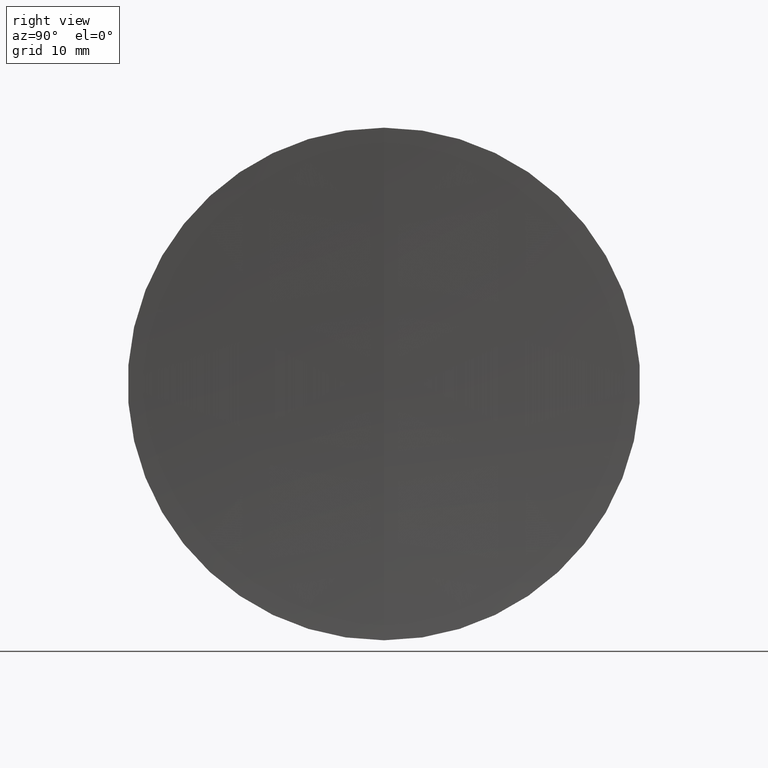
[diagram: clean part render]
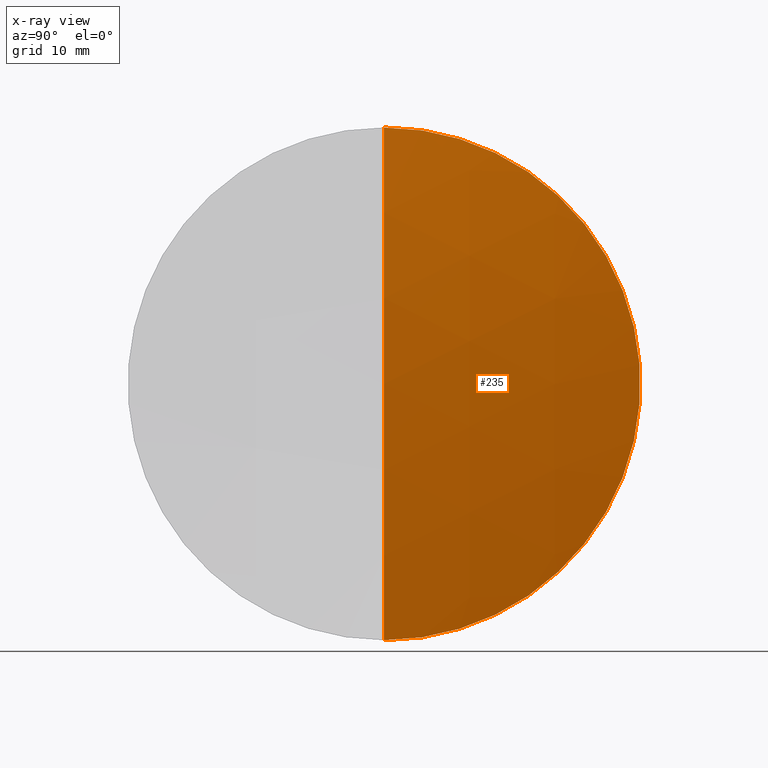
[diagram: x-ray — body ghosted, one internal face saturated and labeled with its STEP entity id]
A machine part, right view, then the same camera in x-ray: the body is ghosted and one INTERNAL B-rep face — a face not visible from any outside direction — is saturated and labeled: STEP entity #235.
In plain terms, the highlighted spherical surface has radius 161.5 mm.
Its self-contained STEP definition (entity closure, byte-faithful):
#1 = VERTEX_POINT ( 'NONE', #91 ) ;
#3 = EDGE_CURVE ( 'NONE', #1, #245, #28, .T. ) ;
#8 = CARTESIAN_POINT ( 'NONE',  ( 44.36476896124682400, 0.0000000000000000000, 3.080629158308288600E-014 ) ) ;
#14 = DIRECTION ( 'NONE',  ( 0.0000000000000000000, -1.000000000000000000, 0.0000000000000000000 ) ) ;
#28 = CIRCLE ( 'NONE', #168, 161.5000000000000000 ) ;
#31 = EDGE_CURVE ( 'NONE', #1, #320, #167, .T. ) ;
#40 = CARTESIAN_POINT ( 'NONE',  ( 203.8548626975037100, 0.0000000000000000000, 0.0000000000000000000 ) ) ;
#44 = CARTESIAN_POINT ( 'NONE',  ( 203.8548626975037100, 3.110602869834281200E-015, -25.40000000000003400 ) ) ;
#75 = ORIENTED_EDGE ( 'NONE', *, *, #3, .F. ) ;
#77 = SPHERICAL_SURFACE ( 'NONE', #155, 161.5000000000000000 ) ;
#89 = DIRECTION ( 'NONE',  ( -1.000000000000000000, -0.0000000000000000000, -0.0000000000000000000 ) ) ;
#91 = CARTESIAN_POINT ( 'NONE',  ( 205.8647689612468200, 0.0000000000000000000, 4.069531448619776800E-014 ) ) ;
#102 = FACE_OUTER_BOUND ( 'NONE', #201, .T. ) ;
#113 = DIRECTION ( 'NONE',  ( 0.0000000000000000000, 1.000000000000000000, 0.0000000000000000000 ) ) ;
#123 = AXIS2_PLACEMENT_3D ( 'NONE', #40, #89, #258 ) ;
#127 = CARTESIAN_POINT ( 'NONE',  ( 203.8548626975037100, 0.0000000000000000000, 25.40000000000003100 ) ) ;
#128 = DIRECTION ( 'NONE',  ( 0.0000000000000000000, -1.224646799147353200E-016, 1.000000000000000000 ) ) ;
#130 = CIRCLE ( 'NONE', #123, 25.40000000000003100 ) ;
#146 = CARTESIAN_POINT ( 'NONE',  ( 44.36476896124682400, 0.0000000000000000000, 3.080629158308288600E-014 ) ) ;
#155 = AXIS2_PLACEMENT_3D ( 'NONE', #8, #113, #202 ) ;
#167 = CIRCLE ( 'NONE', #203, 161.5000000000000000 ) ;
#168 = AXIS2_PLACEMENT_3D ( 'NONE', #146, #14, #169 ) ;
#169 = DIRECTION ( 'NONE',  ( 0.0000000000000000000, 0.0000000000000000000, -1.000000000000000000 ) ) ;
#184 = DIRECTION ( 'NONE',  ( -0.0000000000000000000, 1.000000000000000000, 1.224646799147353200E-016 ) ) ;
#189 = ORIENTED_EDGE ( 'NONE', *, *, #198, .F. ) ;
#198 = EDGE_CURVE ( 'NONE', #245, #320, #130, .T. ) ;
#201 = EDGE_LOOP ( 'NONE', ( #75, #309, #189 ) ) ;
#202 = DIRECTION ( 'NONE',  ( 0.0000000000000000000, 0.0000000000000000000, 1.000000000000000000 ) ) ;
#203 = AXIS2_PLACEMENT_3D ( 'NONE', #345, #184, #128 ) ;
#235 = ADVANCED_FACE ( 'NONE', ( #102 ), #77, .T. ) ;
#245 = VERTEX_POINT ( 'NONE', #127 ) ;
#258 = DIRECTION ( 'NONE',  ( 0.0000000000000000000, 0.0000000000000000000, 1.000000000000000000 ) ) ;
#309 = ORIENTED_EDGE ( 'NONE', *, *, #31, .T. ) ;
#320 = VERTEX_POINT ( 'NONE', #44 ) ;
#345 = CARTESIAN_POINT ( 'NONE',  ( 44.36476896124682400, 0.0000000000000000000, 3.080629158308288600E-014 ) ) ;